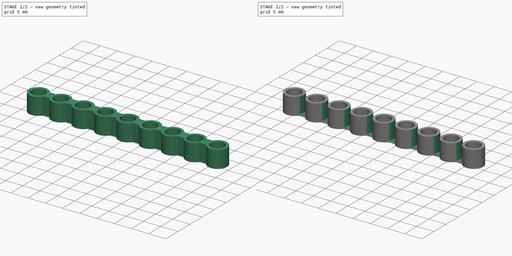
[diagram: build sequence overview — one tinted view per stage of 2, left to right]
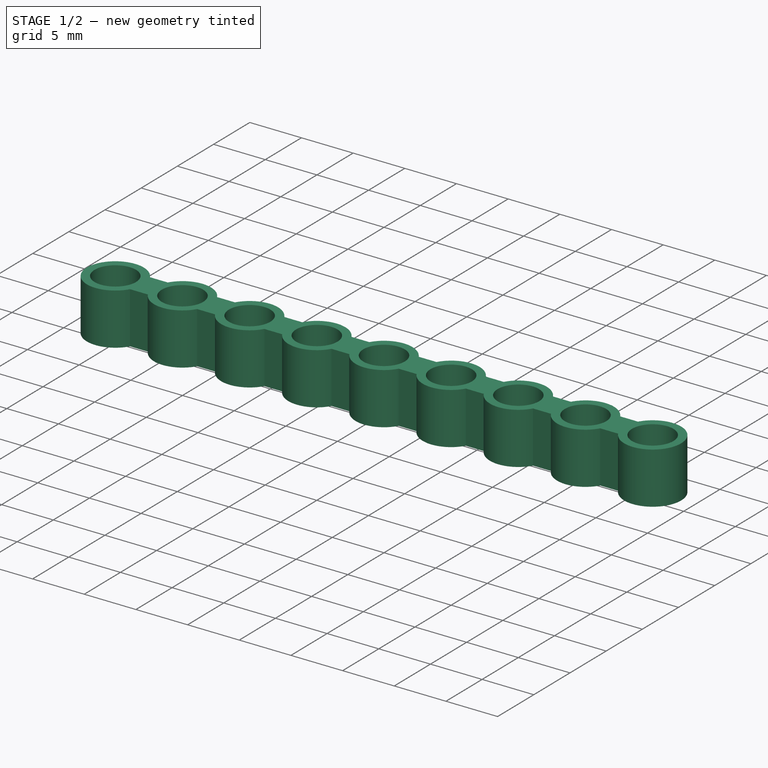
[diagram: stage 1 of 2 — iso view after this stage's code; geometry added in this stage tinted green]
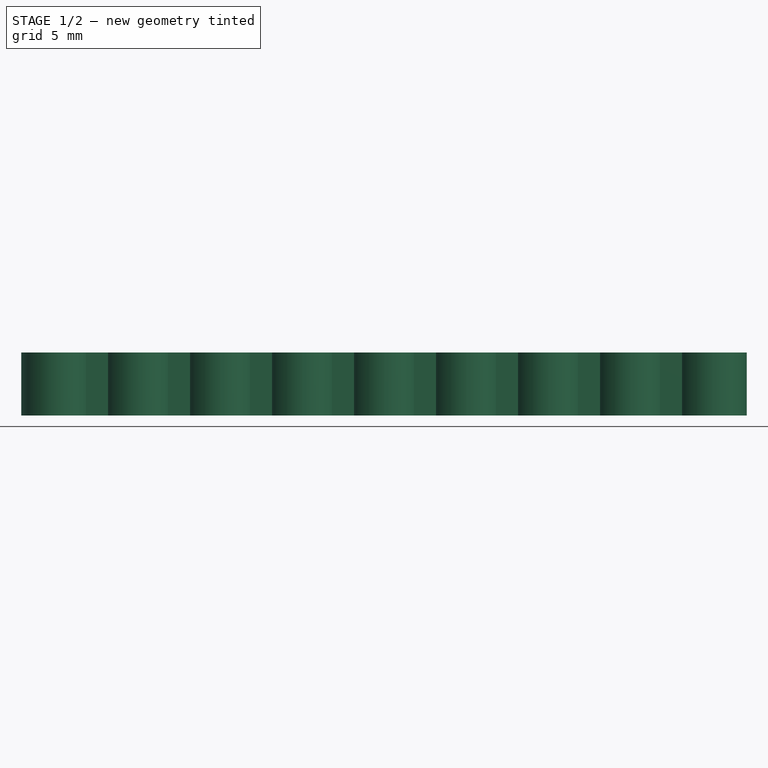
[diagram: stage 1 of 2 — front view after this stage's code; geometry added in this stage tinted green]
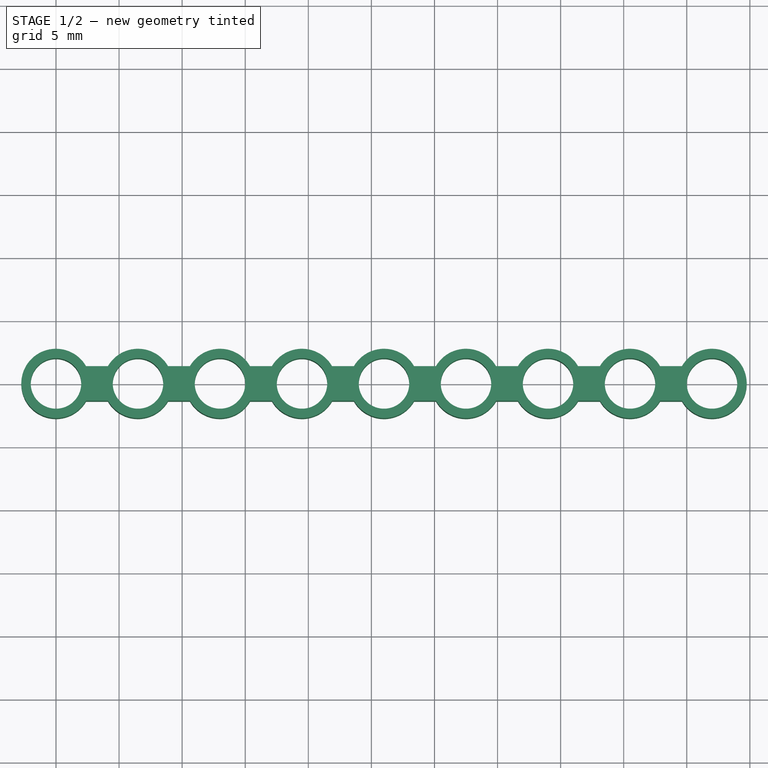
[diagram: stage 1 of 2 — top view after this stage's code; geometry added in this stage tinted green]
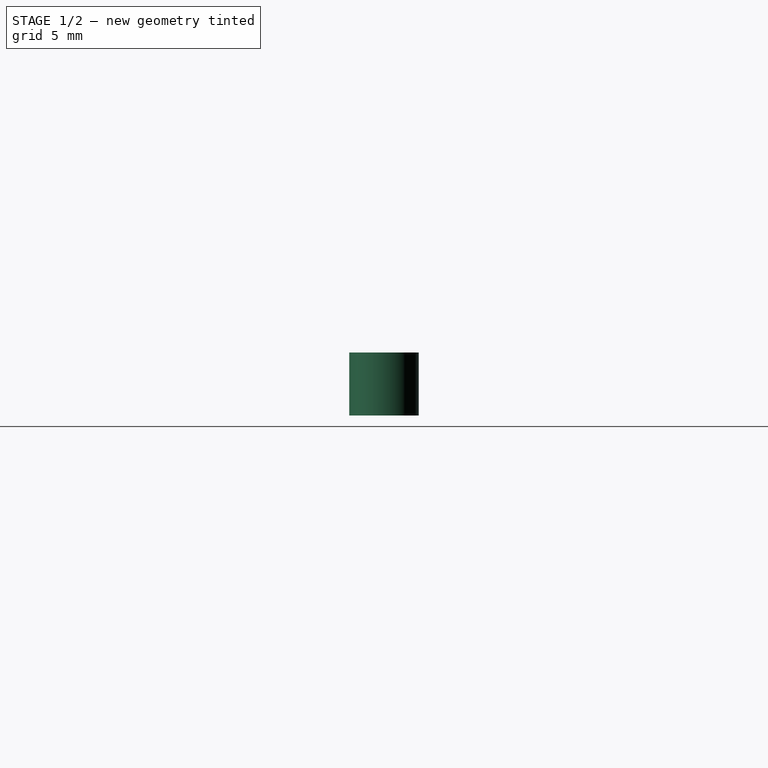
[diagram: stage 1 of 2 — right view after this stage's code; geometry added in this stage tinted green]
FCSTD DOCUMENT  (FreeCAD 0.17R13662 (Git))
Label: lcd_spacer
License: CreativeCommons Attribution-ShareAlike
LicenseURL: http://creativecommons.org/licenses/by-sa/4.0/
objects: Sketcher::SketchObject×2, PartDesign::Pad×1, PartDesign::Pocket×1, PartDesign::Body×1
note: 7 computed .brp shape members not serialized (recipe doc carries the construction recipe); baked Part::Feature solids carry a one-line shape summary decoded from their .brp

FEATURE [Sketcher::SketchObject] Sketch
  MapMode = 5
  Support = -> [XY_Plane]
  sketch-geometry (57):
    g0: Circle CenterX=0 CenterY=0 CenterZ=0 NormalX=0 NormalY=0 NormalZ=1 AngleXU=0 Radius=2
    g1: Circle CenterX=6.5 CenterY=-1e-12 CenterZ=0 NormalX=0 NormalY=0 NormalZ=1 AngleXU=0 Radius=2
    g2: Circle CenterX=13 CenterY=0 CenterZ=0 NormalX=0 NormalY=0 NormalZ=1 AngleXU=0 Radius=2
    g3: Circle CenterX=19.5 CenterY=0 CenterZ=0 NormalX=0 NormalY=0 NormalZ=1 AngleXU=0 Radius=2
    g4: Circle CenterX=26 CenterY=0 CenterZ=0 NormalX=0 NormalY=0 NormalZ=1 AngleXU=0 Radius=2
    g5: Circle CenterX=32.5 CenterY=0 CenterZ=0 NormalX=0 NormalY=0 NormalZ=1 AngleXU=0 Radius=2
    g6: Circle CenterX=39 CenterY=0 CenterZ=0 NormalX=0 NormalY=0 NormalZ=1 AngleXU=0 Radius=2
    g7: Circle CenterX=45.5 CenterY=0 CenterZ=0 NormalX=0 NormalY=0 NormalZ=1 AngleXU=0 Radius=2
    g8: Circle CenterX=52 CenterY=0 CenterZ=0 NormalX=0 NormalY=0 NormalZ=1 AngleXU=0 Radius=2
    g9: ArcOfCircle CenterX=52 CenterY=0 CenterZ=0 NormalX=0 NormalY=0 NormalZ=1 AngleXU=0 Radius=2.75 StartAngle=3.66519 EndAngle=8.90118
    g10: ArcOfCircle CenterX=0 CenterY=0 CenterZ=0 NormalX=0 NormalY=0 NormalZ=1 AngleXU=0 Radius=2.75 StartAngle=0.523599 EndAngle=5.75959
    g11: ArcOfCircle CenterX=6.5 CenterY=-1e-12 CenterZ=0 NormalX=0 NormalY=0 NormalZ=1 AngleXU=0 Radius=2.75 StartAngle=0.523599 EndAngle=2.61799
    g12: ArcOfCircle CenterX=6.5 CenterY=-1e-12 CenterZ=0 NormalX=0 NormalY=0 NormalZ=1 AngleXU=0 Radius=2.75 StartAngle=3.66519 EndAngle=5.75959
    g13: ArcOfCircle CenterX=13 CenterY=0 CenterZ=0 NormalX=0 NormalY=0 NormalZ=1 AngleXU=0 Radius=2.75 StartAngle=0.523599 EndAngle=2.61799
    g14: ArcOfCircle CenterX=13 CenterY=0 CenterZ=0 NormalX=0 NormalY=0 NormalZ=1 AngleXU=0 Radius=2.75 StartAngle=3.66519 EndAngle=5.75959
    g15: ArcOfCircle CenterX=19.5 CenterY=0 CenterZ=0 NormalX=0 NormalY=0 NormalZ=1 AngleXU=0 Radius=2.75 StartAngle=0.523599 EndAngle=2.61799
    g16: ArcOfCircle CenterX=19.5 CenterY=0 CenterZ=0 NormalX=0 NormalY=0 NormalZ=1 AngleXU=0 Radius=2.75 StartAngle=3.66519 EndAngle=5.75959
    g17: ArcOfCircle CenterX=26 CenterY=0 CenterZ=0 NormalX=0 NormalY=0 NormalZ=1 AngleXU=0 Radius=2.75 StartAngle=3.66519 EndAngle=5.75959
    g18: ArcOfCircle CenterX=32.5 CenterY=0 CenterZ=0 NormalX=0 NormalY=0 NormalZ=1 AngleXU=0 Radius=2.75 StartAngle=0.523599 EndAngle=2.61799
    g19: ArcOfCircle CenterX=32.5 CenterY=0 CenterZ=0 NormalX=0 NormalY=0 NormalZ=1 AngleXU=0 Radius=2.75 StartAngle=3.66519 EndAngle=5.75959
    g20: ArcOfCircle CenterX=39 CenterY=0 CenterZ=0 NormalX=0 NormalY=0 NormalZ=1 AngleXU=0 Radius=2.75 StartAngle=0.523599 EndAngle=2.61799
    g21: ArcOfCircle CenterX=39 CenterY=0 CenterZ=0 NormalX=0 NormalY=0 NormalZ=1 AngleXU=0 Radius=2.75 StartAngle=3.66519 EndAngle=5.75959
    g22: ArcOfCircle CenterX=45.5 CenterY=0 CenterZ=0 NormalX=0 NormalY=0 NormalZ=1 AngleXU=0 Radius=2.75 StartAngle=0.523599 EndAngle=2.61799
    g23: ArcOfCircle CenterX=45.5 CenterY=0 CenterZ=0 NormalX=0 NormalY=0 NormalZ=1 AngleXU=0 Radius=2.75 StartAngle=3.66519 EndAngle=5.75959
    g24: LineSegment StartX=47.8816 StartY=1.375 StartZ=0 EndX=49.6184 EndY=1.375 EndZ=0
    g25: LineSegment [constr] StartX=49.6184 StartY=1.375 StartZ=0 EndX=49.6184 EndY=-1.375 EndZ=0
    g26: LineSegment StartX=49.6184 StartY=-1.375 StartZ=0 EndX=47.8816 EndY=-1.375 EndZ=0
    g27: LineSegment [constr] StartX=47.8816 StartY=-1.375 StartZ=0 EndX=47.8816 EndY=1.375 EndZ=0
    g28: LineSegment StartX=43.1184 StartY=1.375 StartZ=0 EndX=41.3816 EndY=1.375 EndZ=0
    g29: LineSegment [constr] StartX=41.3816 StartY=1.375 StartZ=0 EndX=41.3816 EndY=-1.375 EndZ=0
    g30: LineSegment StartX=41.3816 StartY=-1.375 StartZ=0 EndX=43.1184 EndY=-1.375 EndZ=0
    g31: LineSegment [constr] StartX=43.1184 StartY=-1.375 StartZ=0 EndX=43.1184 EndY=1.375 EndZ=0
    g32: LineSegment StartX=36.6184 StartY=1.375 StartZ=0 EndX=34.8816 EndY=1.375 EndZ=0
    g33: LineSegment [constr] StartX=34.8816 StartY=1.375 StartZ=0 EndX=34.8816 EndY=-1.375 EndZ=0
    g34: LineSegment StartX=34.8816 StartY=-1.375 StartZ=0 EndX=36.6184 EndY=-1.375 EndZ=0
    g35: LineSegment [constr] StartX=36.6184 StartY=-1.375 StartZ=0 EndX=36.6184 EndY=1.375 EndZ=0
    g36: LineSegment StartX=30.1184 StartY=1.375 StartZ=0 EndX=28.3816 EndY=1.375 EndZ=0
    g37: LineSegment [constr] StartX=28.3816 StartY=1.375 StartZ=0 EndX=28.3816 EndY=-1.375 EndZ=0
    g38: LineSegment StartX=28.3816 StartY=-1.375 StartZ=0 EndX=30.1184 EndY=-1.375 EndZ=0
    g39: LineSegment [constr] StartX=30.1184 StartY=-1.375 StartZ=0 EndX=30.1184 EndY=1.375 EndZ=0
    g40: LineSegment StartX=23.6184 StartY=1.375 StartZ=0 EndX=21.8816 EndY=1.375 EndZ=0
    g41: LineSegment [constr] StartX=21.8816 StartY=1.375 StartZ=0 EndX=21.8816 EndY=-1.375 EndZ=0
    g42: LineSegment StartX=21.8816 StartY=-1.375 StartZ=0 EndX=23.6184 EndY=-1.375 EndZ=0
    g43: LineSegment [constr] StartX=23.6184 StartY=-1.375 StartZ=0 EndX=23.6184 EndY=1.375 EndZ=0
    g44: LineSegment StartX=17.1184 StartY=1.375 StartZ=0 EndX=15.3816 EndY=1.375 EndZ=0
    g45: LineSegment [constr] StartX=15.3816 StartY=1.375 StartZ=0 EndX=15.3816 EndY=-1.375 EndZ=0
    g46: LineSegment StartX=15.3816 StartY=-1.375 StartZ=0 EndX=17.1184 EndY=-1.375 EndZ=0
    g47: LineSegment [constr] StartX=17.1184 StartY=-1.375 StartZ=0 EndX=17.1184 EndY=1.375 EndZ=0
    g48: LineSegment StartX=10.6184 StartY=1.375 StartZ=0 EndX=8.88157 EndY=1.375 EndZ=0
    g49: LineSegment [constr] StartX=8.88157 StartY=1.375 StartZ=0 EndX=8.88157 EndY=-1.375 EndZ=0
    g50: LineSegment StartX=8.88157 StartY=-1.375 StartZ=0 EndX=10.6184 EndY=-1.375 EndZ=0
    g51: LineSegment [constr] StartX=10.6184 StartY=-1.375 StartZ=0 EndX=10.6184 EndY=1.375 EndZ=0
    g52: LineSegment StartX=4.11843 StartY=1.375 StartZ=0 EndX=2.38157 EndY=1.375 EndZ=0
    g53: LineSegment [constr] StartX=2.38157 StartY=1.375 StartZ=0 EndX=2.38157 EndY=-1.375 EndZ=0
    g54: LineSegment StartX=2.38157 StartY=-1.375 StartZ=0 EndX=4.11843 EndY=-1.375 EndZ=0
    g55: LineSegment [constr] StartX=4.11843 StartY=-1.375 StartZ=0 EndX=4.11843 EndY=1.375 EndZ=0
    g56: ArcOfCircle CenterX=26 CenterY=0 CenterZ=0 NormalX=0 NormalY=0 NormalZ=1 AngleXU=0 Radius=2.75 StartAngle=0.523599 EndAngle=2.61799
  constraints (159):
    c: Coincident(g0,g-1)
    c: Radius(g0) = 2
    c: PointOnObject(g1,g-1)
    c: PointOnObject(g4,g-1)
    c: PointOnObject(g2,g-1)
    c: PointOnObject(g3,g-1)
    c: PointOnObject(g5,g-1)
    c: PointOnObject(g6,g-1)
    c: PointOnObject(g7,g-1)
    c: PointOnObject(g8,g-1)
    c: DistanceX(g-1,g1) = 6.5
    c: DistanceX(g1,g2) = 6.5
    c: DistanceX(g2,g3) = 6.5
    c: DistanceX(g3,g4) = 6.5
    c: DistanceX(g4,g5) = 6.5
    c: DistanceX(g5,g6) = 6.5
    c: DistanceX(g6,g7) = 6.5
    c: DistanceX(g7,g8) = 6.5
    c: Equal(g0,g1)
    c: Equal(g1,g2)
    c: Equal(g2,g3)
    c: Equal(g3,g4)
    c: Equal(g4,g5)
    c: Equal(g5,g6)
    c: Equal(g6,g7)
    c: Equal(g7,g8)
    c: Coincident(g8,g9)
    c: Coincident(g0,g10)
    c: Radius(g10) = 2.75
    c: Radius(g9) = 2.75
    c: Equal(g22,g9)
    c: Equal(g9,g20)
    c: Equal(g20,g18)
    c: Equal(g18,g11)
    c: Equal(g11,g13)
    c: Equal(g12,g14)
    c: Equal(g14,g16)
    c: Equal(g16,g17)
    c: Equal(g17,g19)
    c: Equal(g19,g21)
    c: Equal(g21,g23)
    c: Coincident(g1,g11)
    c: Coincident(g1,g12)
    c: Coincident(g2,g13)
    c: Coincident(g2,g14)
    c: Coincident(g3,g15)
    c: Coincident(g3,g16)
    c: Coincident(g4,g17)
    c: Coincident(g5,g18)
    c: Coincident(g5,g19)
    c: Coincident(g6,g20)
    c: Coincident(g6,g21)
    c: Coincident(g7,g22)
    c: Coincident(g7,g23)
    c: Coincident(g24,g25)
    c: Coincident(g25,g26)
    c: Coincident(g26,g27)
    c: Coincident(g27,g24)
    c: Horizontal(g24)
    c: Horizontal(g26)
    c: Vertical(g25)
    c: Vertical(g27)
    c: Coincident(g28,g29)
    c: Coincident(g29,g30)
    c: Coincident(g30,g31)
    c: Coincident(g31,g28)
    c: Horizontal(g28)
    c: Horizontal(g30)
    c: Vertical(g29)
    c: Vertical(g31)
    c: Coincident(g32,g33)
    c: Coincident(g33,g34)
    c: Coincident(g34,g35)
    c: Coincident(g35,g32)
    c: Horizontal(g32)
    c: Horizontal(g34)
    c: Vertical(g33)
    c: Vertical(g35)
    c: Coincident(g36,g37)
    c: Coincident(g37,g38)
    c: Coincident(g38,g39)
    c: Coincident(g39,g36)
    c: Horizontal(g36)
    c: Horizontal(g38)
    c: Vertical(g37)
    c: Vertical(g39)
    c: Coincident(g40,g41)
    c: Coincident(g41,g42)
    c: Coincident(g42,g43)
    c: Coincident(g43,g40)
    c: Horizontal(g40)
    c: Horizontal(g42)
    c: Vertical(g41)
    c: Vertical(g43)
    c: Coincident(g44,g45)
    c: Coincident(g45,g46)
    c: Coincident(g46,g47)
    c: Coincident(g47,g44)
    c: Horizontal(g44)
    c: Horizontal(g46)
    c: Vertical(g45)
    c: Vertical(g47)
    c: Coincident(g48,g49)
    c: Coincident(g49,g50)
    c: Coincident(g50,g51)
    c: Coincident(g51,g48)
    c: Horizontal(g48)
    c: Horizontal(g50)
    c: Vertical(g49)
    c: Vertical(g51)
    c: Coincident(g52,g53)
    c: Coincident(g53,g54)
    c: Coincident(g54,g55)
    c: Coincident(g55,g52)
    c: Horizontal(g52)
    c: Horizontal(g54)
    c: Vertical(g53)
    c: Vertical(g55)
    c: Coincident(g11,g52)
    c: Coincident(g12,g54)
    c: Coincident(g10,g53)
    c: Coincident(g10,g52)
    c: Coincident(g11,g48)
    c: Coincident(g12,g49)
    c: Coincident(g14,g50)
    c: Coincident(g13,g48)
    c: Coincident(g13,g44)
    c: Coincident(g14,g45)
    c: Coincident(g16,g46)
    c: Coincident(g15,g44)
    c: Coincident(g15,g40)
    c: Coincident(g16,g41)
    c: Coincident(g17,g42)
    c: Coincident(g17,g37)
    c: Coincident(g36,g56)
    c: Coincident(g40,g56)
    c: Coincident(g4,g56)
    c: Coincident(g18,g36)
    c: Coincident(g19,g38)
    c: Coincident(g18,g32)
    c: Coincident(g19,g33)
    c: Coincident(g20,g32)
    c: Coincident(g21,g34)
    c: Coincident(g20,g28)
    c: Coincident(g21,g29)
    c: Coincident(g23,g30)
    c: Coincident(g22,g28)
    c: Coincident(g22,g24)
    c: Coincident(g9,g24)
    c: Coincident(g9,g25)
    c: Coincident(g23,g26)
    c: Equal(g25,g31)
    c: Equal(g31,g35)
    c: Equal(g35,g39)
    c: Equal(g39,g43)
    c: Equal(g43,g47)
    c: Equal(g47,g51)
    c: Equal(g51,g55)
    c: DistanceY(g55,g55) = 2.75
FEATURE [PartDesign::Pad] Pad
  Length = 5
  Length2 = 100
  Profile = -> Sketch
  Type = 0
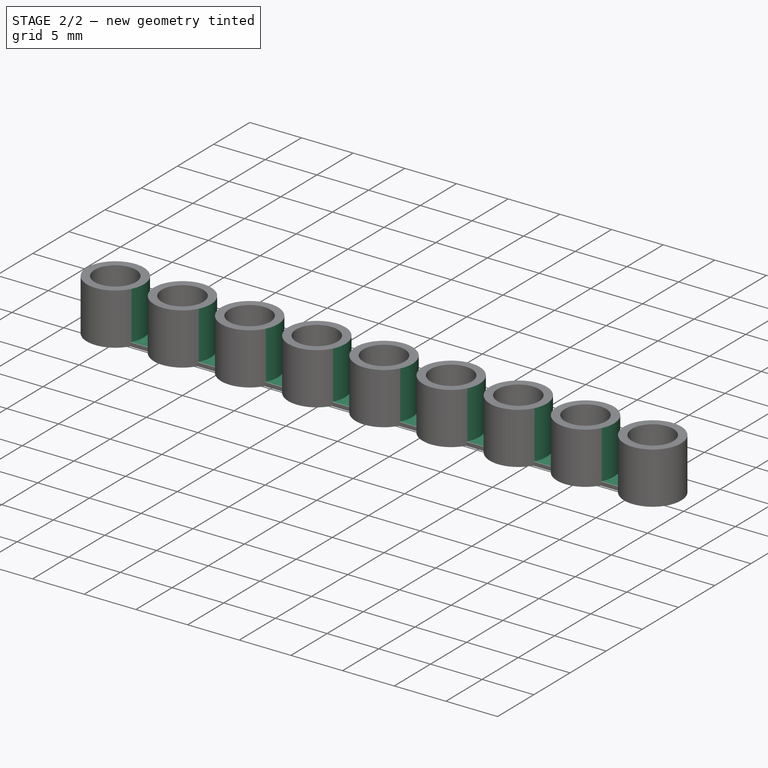
[diagram: stage 2 of 2 — iso view after this stage's code; geometry added in this stage tinted green]
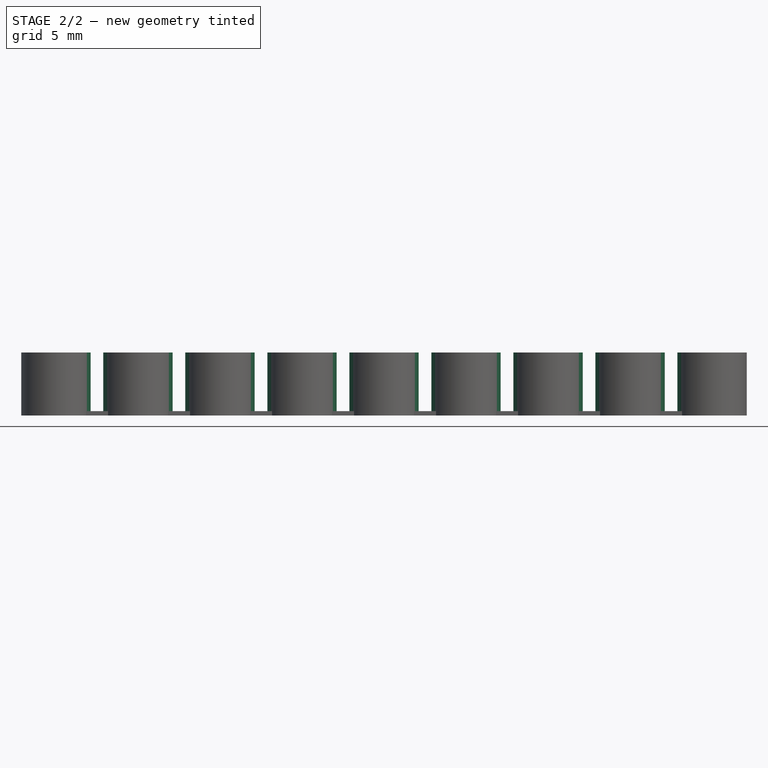
[diagram: stage 2 of 2 — front view after this stage's code; geometry added in this stage tinted green]
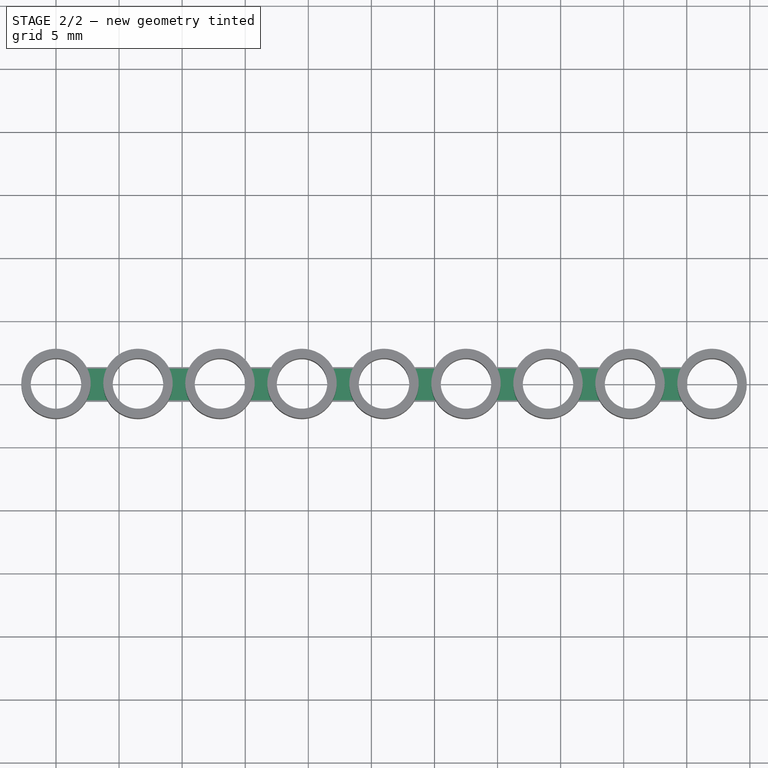
[diagram: stage 2 of 2 — top view after this stage's code; geometry added in this stage tinted green]
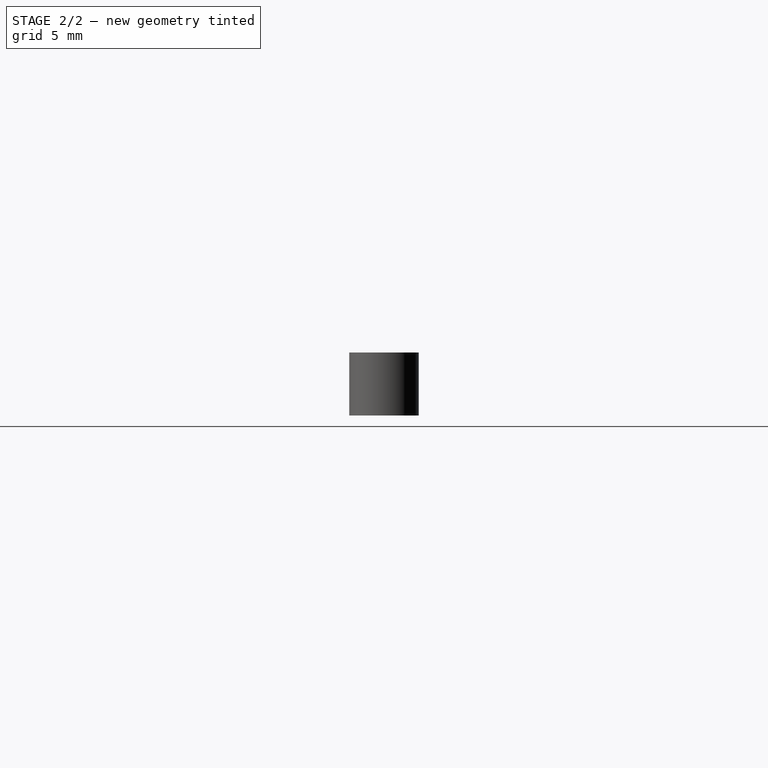
[diagram: stage 2 of 2 — right view after this stage's code; geometry added in this stage tinted green]
FEATURE [Sketcher::SketchObject] Sketch001
  ExternalGeometry = -> [Pad]
  MapMode = 5
  Placement = pos=(0,0,5) rot=(0,0,1;0rad)
  Support = -> [Pad]
  sketch-geometry (48):
    g0: ArcOfCircle CenterX=0 CenterY=0 CenterZ=0 NormalX=0 NormalY=0 NormalZ=1 AngleXU=0 Radius=2.75 StartAngle=5.75959 EndAngle=6.80678
    g1: ArcOfCircle CenterX=6.5 CenterY=0 CenterZ=0 NormalX=0 NormalY=0 NormalZ=1 AngleXU=0 Radius=2.75 StartAngle=2.61799 EndAngle=3.66519
    g2: ArcOfCircle CenterX=6.5 CenterY=0 CenterZ=0 NormalX=0 NormalY=0 NormalZ=1 AngleXU=0 Radius=2.75 StartAngle=5.75959 EndAngle=6.80678
    g3: ArcOfCircle CenterX=13 CenterY=0 CenterZ=0 NormalX=0 NormalY=0 NormalZ=1 AngleXU=0 Radius=2.75 StartAngle=2.61799 EndAngle=3.66519
    g4: ArcOfCircle CenterX=13 CenterY=0 CenterZ=0 NormalX=0 NormalY=0 NormalZ=1 AngleXU=0 Radius=2.75 StartAngle=5.75959 EndAngle=6.80678
    g5: ArcOfCircle CenterX=19.5 CenterY=0 CenterZ=0 NormalX=0 NormalY=0 NormalZ=1 AngleXU=0 Radius=2.75 StartAngle=2.61799 EndAngle=3.66519
    g6: ArcOfCircle CenterX=26 CenterY=0 CenterZ=0 NormalX=0 NormalY=0 NormalZ=1 AngleXU=0 Radius=2.75 StartAngle=2.61799 EndAngle=3.66519
    g7: ArcOfCircle CenterX=26 CenterY=0 CenterZ=0 NormalX=0 NormalY=0 NormalZ=1 AngleXU=0 Radius=2.75 StartAngle=5.75959 EndAngle=6.80678
    g8: ArcOfCircle CenterX=32.5 CenterY=0 CenterZ=0 NormalX=0 NormalY=0 NormalZ=1 AngleXU=0 Radius=2.75 StartAngle=2.61799 EndAngle=3.66519
    g9: ArcOfCircle CenterX=32.5 CenterY=0 CenterZ=0 NormalX=0 NormalY=0 NormalZ=1 AngleXU=0 Radius=2.75 StartAngle=5.75959 EndAngle=6.80678
    g10: ArcOfCircle CenterX=39 CenterY=0 CenterZ=0 NormalX=0 NormalY=0 NormalZ=1 AngleXU=0 Radius=2.75 StartAngle=2.61799 EndAngle=3.66519
    g11: ArcOfCircle CenterX=39 CenterY=0 CenterZ=0 NormalX=0 NormalY=0 NormalZ=1 AngleXU=0 Radius=2.75 StartAngle=5.75959 EndAngle=6.80678
    g12: ArcOfCircle CenterX=45.5 CenterY=0 CenterZ=0 NormalX=0 NormalY=0 NormalZ=1 AngleXU=0 Radius=2.75 StartAngle=2.61799 EndAngle=3.66519
    g13: ArcOfCircle CenterX=45.5 CenterY=0 CenterZ=0 NormalX=0 NormalY=0 NormalZ=1 AngleXU=0 Radius=2.75 StartAngle=5.75959 EndAngle=6.80678
    g14: ArcOfCircle CenterX=52 CenterY=1e-12 CenterZ=0 NormalX=0 NormalY=0 NormalZ=1 AngleXU=0 Radius=2.75 StartAngle=2.61799 EndAngle=3.66519
    g15: LineSegment StartX=2.38157 StartY=1.375 StartZ=0 EndX=4.11843 EndY=1.375 EndZ=0
    g16: LineSegment [constr] StartX=4.11843 StartY=1.375 StartZ=0 EndX=4.11843 EndY=-1.375 EndZ=0
    g17: LineSegment StartX=4.11843 StartY=-1.375 StartZ=0 EndX=2.38157 EndY=-1.375 EndZ=0
    g18: LineSegment [constr] StartX=2.38157 StartY=-1.375 StartZ=0 EndX=2.38157 EndY=1.375 EndZ=0
    g19: LineSegment StartX=8.88157 StartY=1.375 StartZ=0 EndX=10.6184 EndY=1.375 EndZ=0
    g20: LineSegment [constr] StartX=10.6184 StartY=1.375 StartZ=0 EndX=10.6184 EndY=-1.375 EndZ=0
    g21: LineSegment StartX=10.6184 StartY=-1.375 StartZ=0 EndX=8.88157 EndY=-1.375 EndZ=0
    g22: LineSegment [constr] StartX=8.88157 StartY=-1.375 StartZ=0 EndX=8.88157 EndY=1.375 EndZ=0
    g23: LineSegment StartX=15.3816 StartY=1.375 StartZ=0 EndX=17.1184 EndY=1.375 EndZ=0
    g24: LineSegment [constr] StartX=17.1184 StartY=1.375 StartZ=0 EndX=17.1184 EndY=-1.375 EndZ=0
    g25: LineSegment StartX=17.1184 StartY=-1.375 StartZ=0 EndX=15.3816 EndY=-1.375 EndZ=0
    g26: LineSegment [constr] StartX=15.3816 StartY=-1.375 StartZ=0 EndX=15.3816 EndY=1.375 EndZ=0
    g27: LineSegment StartX=21.8816 StartY=1.375 StartZ=0 EndX=23.6184 EndY=1.375 EndZ=0
    g28: LineSegment [constr] StartX=23.6184 StartY=1.375 StartZ=0 EndX=23.6184 EndY=-1.375 EndZ=0
    g29: LineSegment StartX=23.6184 StartY=-1.375 StartZ=0 EndX=21.8816 EndY=-1.375 EndZ=0
    g30: LineSegment [constr] StartX=21.8816 StartY=-1.375 StartZ=0 EndX=21.8816 EndY=1.375 EndZ=0
    g31: LineSegment StartX=28.3816 StartY=1.375 StartZ=0 EndX=30.1184 EndY=1.375 EndZ=0
    g32: LineSegment [constr] StartX=30.1184 StartY=1.375 StartZ=0 EndX=30.1184 EndY=-1.375 EndZ=0
    g33: LineSegment StartX=30.1184 StartY=-1.375 StartZ=0 EndX=28.3816 EndY=-1.375 EndZ=0
    g34: LineSegment [constr] StartX=28.3816 StartY=-1.375 StartZ=0 EndX=28.3816 EndY=1.375 EndZ=0
    g35: LineSegment StartX=34.8816 StartY=1.375 StartZ=0 EndX=36.6184 EndY=1.375 EndZ=0
    g36: LineSegment [constr] StartX=36.6184 StartY=1.375 StartZ=0 EndX=36.6184 EndY=-1.375 EndZ=0
    g37: LineSegment StartX=36.6184 StartY=-1.375 StartZ=0 EndX=34.8816 EndY=-1.375 EndZ=0
    g38: LineSegment [constr] StartX=34.8816 StartY=-1.375 StartZ=0 EndX=34.8816 EndY=1.375 EndZ=0
    g39: LineSegment StartX=41.3816 StartY=1.375 StartZ=0 EndX=43.1184 EndY=1.375 EndZ=0
    g40: LineSegment [constr] StartX=43.1184 StartY=1.375 StartZ=0 EndX=43.1184 EndY=-1.375 EndZ=0
    g41: LineSegment StartX=43.1184 StartY=-1.375 StartZ=0 EndX=41.3816 EndY=-1.375 EndZ=0
    g42: LineSegment [constr] StartX=41.3816 StartY=-1.375 StartZ=0 EndX=41.3816 EndY=1.375 EndZ=0
    g43: LineSegment StartX=47.8816 StartY=1.375 StartZ=0 EndX=49.6184 EndY=1.375 EndZ=0
    g44: LineSegment [constr] StartX=49.6184 StartY=1.375 StartZ=0 EndX=49.6184 EndY=-1.375 EndZ=0
    g45: LineSegment StartX=49.6184 StartY=-1.375 StartZ=0 EndX=47.8816 EndY=-1.375 EndZ=0
    g46: LineSegment [constr] StartX=47.8816 StartY=-1.375 StartZ=0 EndX=47.8816 EndY=1.375 EndZ=0
    g47: ArcOfCircle CenterX=19.5 CenterY=0 CenterZ=0 NormalX=0 NormalY=0 NormalZ=1 AngleXU=0 Radius=2.75 StartAngle=5.75959 EndAngle=6.80678
  constraints (133):
    c: Coincident(g15,g16)
    c: Coincident(g16,g17)
    c: Coincident(g17,g18)
    c: Coincident(g18,g15)
    c: Horizontal(g15)
    c: Horizontal(g17)
    c: Vertical(g16)
    c: Vertical(g18)
    c: Coincident(g19,g20)
    c: Coincident(g20,g21)
    c: Coincident(g21,g22)
    c: Coincident(g22,g19)
    c: Horizontal(g19)
    c: Horizontal(g21)
    c: Vertical(g20)
    c: Vertical(g22)
    c: Coincident(g23,g24)
    c: Coincident(g24,g25)
    c: Coincident(g25,g26)
    c: Coincident(g26,g23)
    c: Horizontal(g23)
    c: Horizontal(g25)
    c: Vertical(g24)
    c: Vertical(g26)
    c: Coincident(g27,g28)
    c: Coincident(g28,g29)
    c: Coincident(g29,g30)
    c: Coincident(g30,g27)
    c: Horizontal(g27)
    c: Horizontal(g29)
    c: Vertical(g28)
    c: Vertical(g30)
    c: Coincident(g31,g32)
    c: Coincident(g32,g33)
    c: Coincident(g33,g34)
    c: Coincident(g34,g31)
    c: Horizontal(g31)
    c: Horizontal(g33)
    c: Vertical(g32)
    c: Vertical(g34)
    c: Coincident(g35,g36)
    c: Coincident(g36,g37)
    c: Coincident(g37,g38)
    c: Coincident(g38,g35)
    c: Horizontal(g35)
    c: Horizontal(g37)
    c: Vertical(g36)
    c: Vertical(g38)
    c: Coincident(g39,g40)
    c: Coincident(g40,g41)
    c: Coincident(g41,g42)
    c: Coincident(g42,g39)
    c: Horizontal(g39)
    c: Horizontal(g41)
    c: Vertical(g40)
    c: Vertical(g42)
    c: Coincident(g43,g44)
    c: Coincident(g44,g45)
    c: Coincident(g45,g46)
    c: Coincident(g46,g43)
    c: Horizontal(g43)
    c: Horizontal(g45)
    c: Vertical(g44)
    c: Vertical(g46)
    c: Coincident(g14,g43)
    c: Coincident(g14,g-7)
    c: Coincident(g14,g44)
    c: Coincident(g13,g45)
    c: Coincident(g13,g-18)
    c: Coincident(g12,g39)
    c: Coincident(g12,g-8)
    c: Coincident(g11,g39)
    c: Coincident(g11,g-9)
    c: Coincident(g12,g13)
    c: Coincident(g12,g-18)
    c: Coincident(g14,g-7)
    c: Coincident(g10,g11)
    c: Coincident(g10,g-17)
    c: Coincident(g8,g9)
    c: Coincident(g8,g-16)
    c: Coincident(g6,g7)
    c: Coincident(g6,g-12)
    c: Coincident(g5,g-13)
    c: Coincident(g3,g4)
    c: Coincident(g3,g-14)
    c: Coincident(g1,g2)
    c: Coincident(g1,g-15)
    c: Coincident(g1,g15)
    c: Coincident(g1,g-4)
    c: Coincident(g1,g16)
    c: Coincident(g0,g15)
    c: Coincident(g0,g-3)
    c: Coincident(g2,g19)
    c: Coincident(g2,g-4)
    c: Coincident(g3,g19)
    c: Coincident(g3,g-5)
    c: Coincident(g2,g21)
    c: Coincident(g4,g25)
    c: Coincident(g4,g-14)
    c: Coincident(g5,g24)
    c: Coincident(g5,g-13)
    c: Coincident(g4,g23)
    c: Coincident(g6,g28)
    c: Coincident(g6,g-12)
    c: Coincident(g29,g47)
    c: Coincident(g29,g-13)
    c: Coincident(g27,g47)
    c: Coincident(g27,g-6)
    c: Equal(g47,g-6)
    c: Coincident(g27,g6)
    c: Coincident(g7,g31)
    c: Coincident(g7,g-11)
    c: Coincident(g33,g7)
    c: Coincident(g7,g-12)
    c: Coincident(g8,g32)
    c: Coincident(g8,g-16)
    c: Coincident(g8,g31)
    c: Coincident(g9,g35)
    c: Coincident(g9,g-10)
    c: Coincident(g10,g35)
    c: Coincident(g10,g-9)
    c: Coincident(g10,g36)
    c: Coincident(g37,g9)
    c: Coincident(g11,g41)
    c: Coincident(g12,g40)
    c: Coincident(g13,g43)
    c: Coincident(g0,g-3)
    c: Coincident(g6,g-11)
    c: Coincident(g8,g-10)
    c: Coincident(g12,g-8)
    c: Coincident(g0,g17)
    c: Coincident(g3,g20)
    c: Coincident(g5,g23)
FEATURE [PartDesign::Pocket] Pocket
  BaseFeature = -> Pad
  Length = 4.65
  Length2 = 100
  Profile = -> Sketch001
  Type = 0
FEATURE [PartDesign::Body] Body
  Group = -> [Sketch,Pad,Sketch001,Pocket]
  Origin = -> Origin
  Tip = -> Pocket
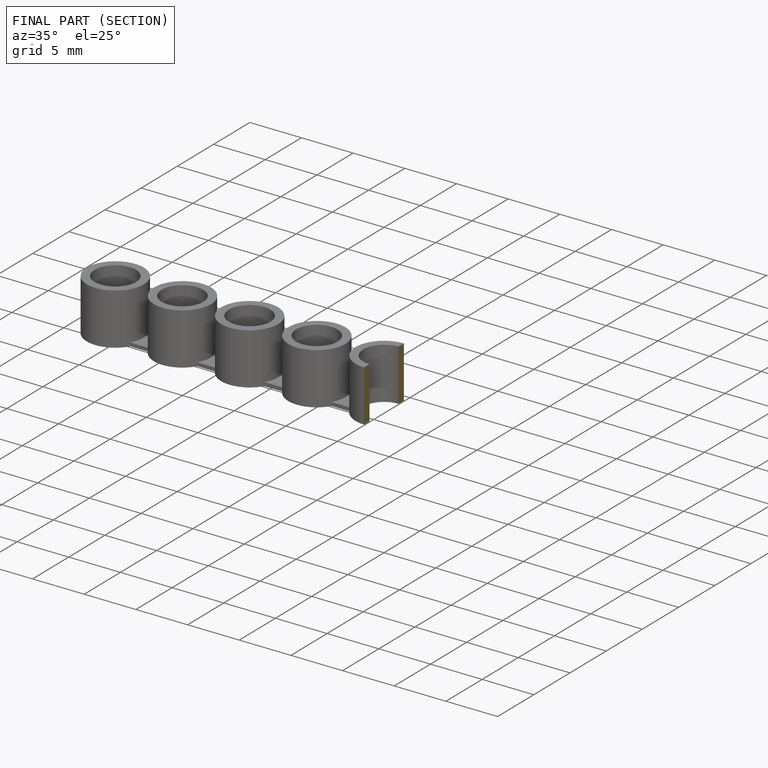
[diagram: finished part — half-section view (interior)]
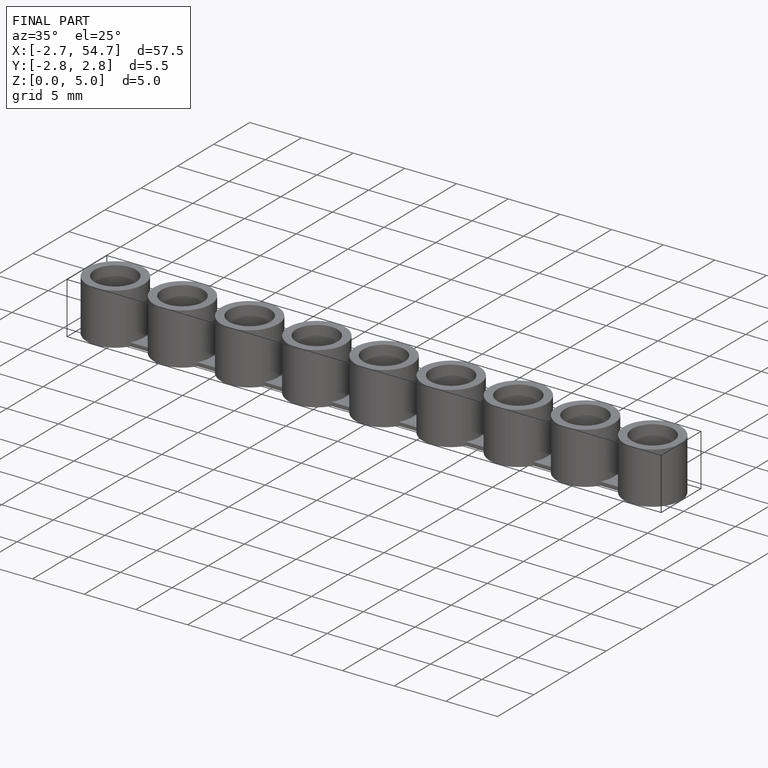
[diagram: finished part — iso view with bounding-box wireframe]
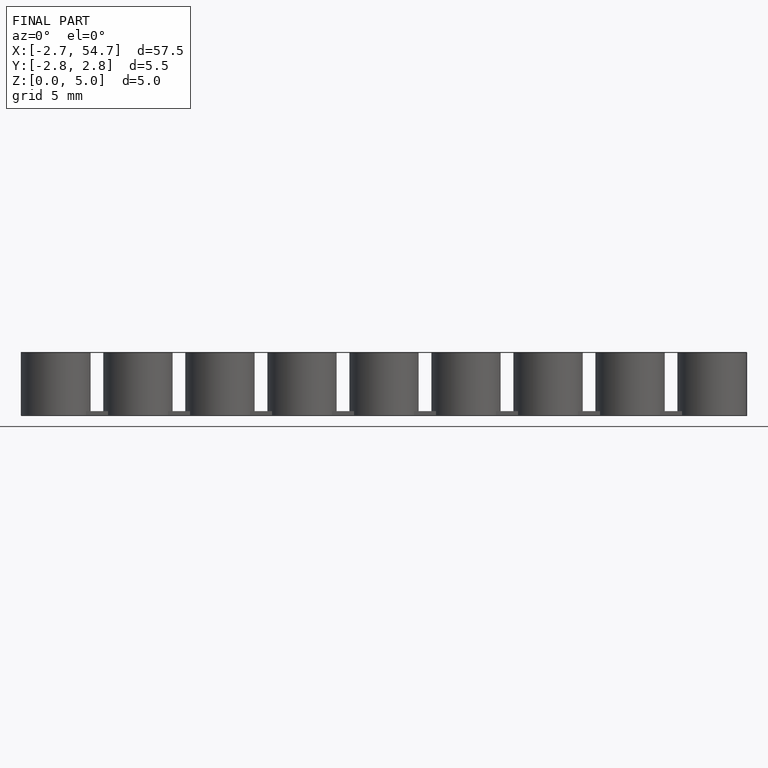
[diagram: finished part — front view with bounding-box wireframe]
